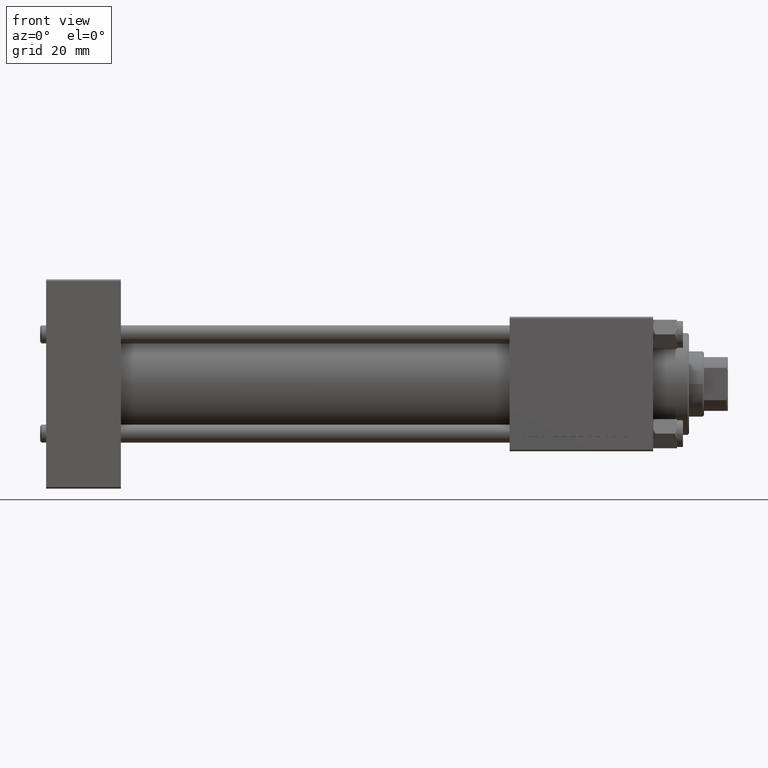
[diagram: clean part render]
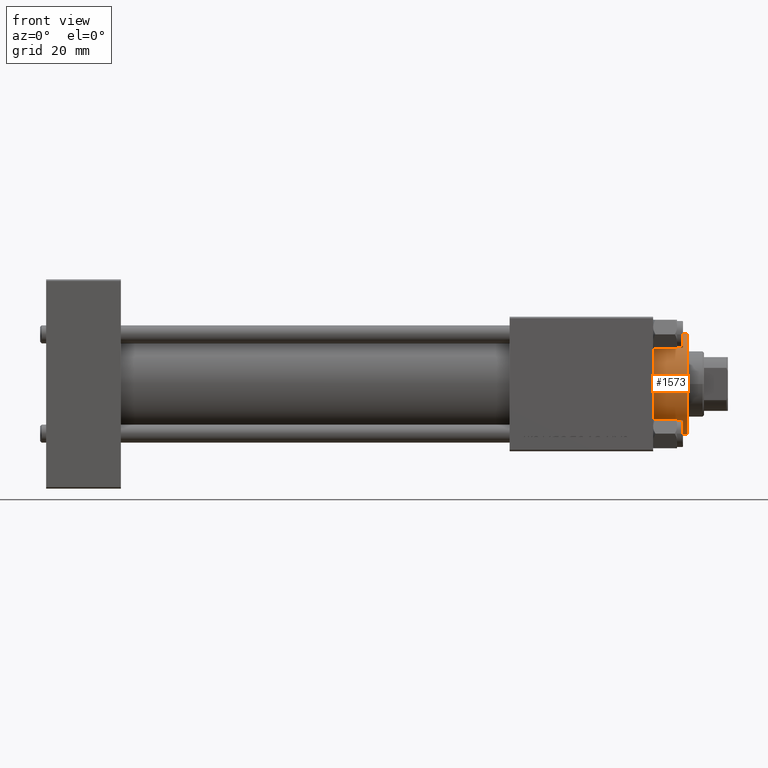
[diagram: same view with one face highlighted and labeled with its STEP entity id]
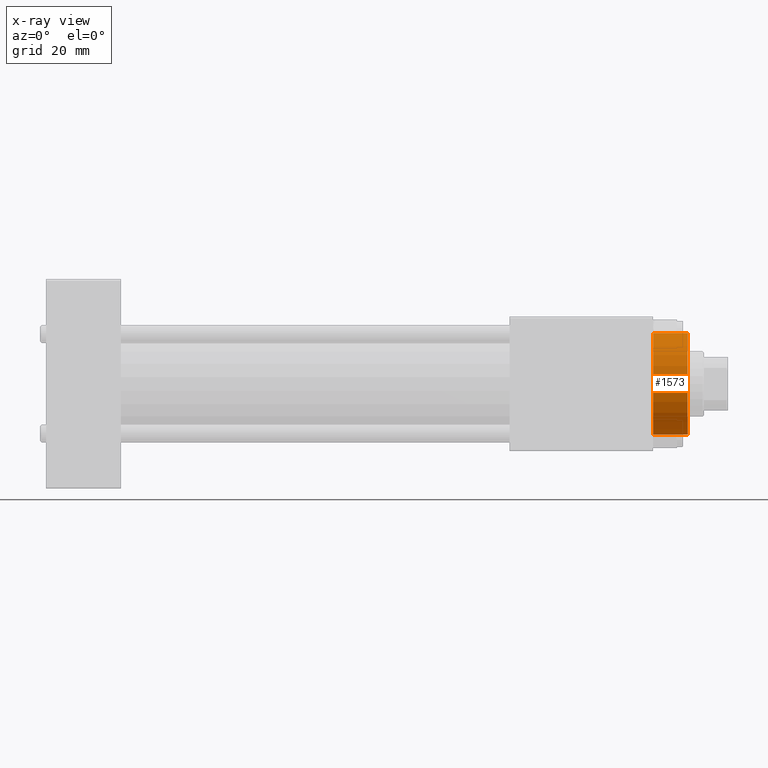
[diagram: x-ray of the same camera — body ghosted, the highlighted face saturated]
A machine part, front view. The second image highlights one B-rep face of the part: STEP entity #1573.
The next image is the same camera in x-ray: the body ghosted, the highlighted face saturated — about 0% of this face is hidden behind the body in this view.
In plain terms, the highlighted cylindrical surface (partial cylindrical patch) has radius 17 mm, axis along (-1, -0, 0).
Its self-contained STEP definition (entity closure, byte-faithful):
#1573 = ADVANCED_FACE ( 'NONE', ( #32688 ), #5135, .T. ) ;
#2078 = CARTESIAN_POINT ( 'NONE',  ( 0.000000000000000000, 0.000000000000000000, 40.70000000000000284 ) ) ;
#3662 = ORIENTED_EDGE ( 'NONE', *, *, #4940, .T. ) ;
#4911 = AXIS2_PLACEMENT_3D ( 'NONE', #29452, #9997, #17577 ) ;
#4940 = EDGE_CURVE ( 'NONE', #19233, #23901, #35608, .T. ) ;
#5013 = CARTESIAN_POINT ( 'NONE',  ( -17.00000000000000000, 0.000000000000000000, 40.70000000000000284 ) ) ;
#5135 = CYLINDRICAL_SURFACE ( 'NONE', #6431, 17.00000000000000000 ) ;
#6019 = EDGE_CURVE ( 'NONE', #44998, #26185, #9793, .T. ) ;
#6431 = AXIS2_PLACEMENT_3D ( 'NONE', #2078, #12731, #8938 ) ;
#7301 = CARTESIAN_POINT ( 'NONE',  ( -17.00000000000000000, 0.000000000000000000, 28.69999999999999929 ) ) ;
#7530 = EDGE_CURVE ( 'NONE', #23901, #44998, #29012, .T. ) ;
#7747 = DIRECTION ( 'NONE',  ( -0.000000000000000000, -0.000000000000000000, -1.000000000000000000 ) ) ;
#8938 = DIRECTION ( 'NONE',  ( -1.000000000000000000, 0.000000000000000000, 0.000000000000000000 ) ) ;
#9689 = DIRECTION ( 'NONE',  ( 1.000000000000000000, 0.000000000000000000, 0.000000000000000000 ) ) ;
#9793 = CIRCLE ( 'NONE', #25124, 17.00000000000000000 ) ;
#9997 = DIRECTION ( 'NONE',  ( 0.000000000000000000, 0.000000000000000000, -1.000000000000000000 ) ) ;
#11863 = CARTESIAN_POINT ( 'NONE',  ( 17.00000000000000000, 2.081899558550500280E-15, 40.19999999999999574 ) ) ;
#12731 = DIRECTION ( 'NONE',  ( -0.000000000000000000, -0.000000000000000000, -1.000000000000000000 ) ) ;
#14487 = CARTESIAN_POINT ( 'NONE',  ( 0.000000000000000000, 0.000000000000000000, 28.69999999999999929 ) ) ;
#17577 = DIRECTION ( 'NONE',  ( 1.000000000000000000, 0.000000000000000000, 0.000000000000000000 ) ) ;
#18888 = LINE ( 'NONE', #34307, #46883 ) ;
#19233 = VERTEX_POINT ( 'NONE', #11863 ) ;
#22053 = ORIENTED_EDGE ( 'NONE', *, *, #48649, .F. ) ;
#23853 = ORIENTED_EDGE ( 'NONE', *, *, #6019, .T. ) ;
#23901 = VERTEX_POINT ( 'NONE', #34684 ) ;
#25124 = AXIS2_PLACEMENT_3D ( 'NONE', #14487, #33454, #9689 ) ;
#26185 = VERTEX_POINT ( 'NONE', #38888 ) ;
#29012 = LINE ( 'NONE', #5013, #38943 ) ;
#29452 = CARTESIAN_POINT ( 'NONE',  ( 0.000000000000000000, 0.000000000000000000, 40.19999999999999574 ) ) ;
#32688 = FACE_OUTER_BOUND ( 'NONE', #38087, .T. ) ;
#33454 = DIRECTION ( 'NONE',  ( 0.000000000000000000, 0.000000000000000000, 1.000000000000000000 ) ) ;
#34307 = CARTESIAN_POINT ( 'NONE',  ( 17.00000000000000000, 2.081899558550500280E-15, 40.70000000000000284 ) ) ;
#34684 = CARTESIAN_POINT ( 'NONE',  ( -17.00000000000000000, 0.000000000000000000, 40.19999999999999574 ) ) ;
#35608 = CIRCLE ( 'NONE', #4911, 17.00000000000000000 ) ;
#38087 = EDGE_LOOP ( 'NONE', ( #22053, #3662, #39670, #23853 ) ) ;
#38888 = CARTESIAN_POINT ( 'NONE',  ( 17.00000000000000000, 2.081899558550500280E-15, 28.69999999999999929 ) ) ;
#38943 = VECTOR ( 'NONE', #47704, 1000.000000000000000 ) ;
#39670 = ORIENTED_EDGE ( 'NONE', *, *, #7530, .T. ) ;
#44998 = VERTEX_POINT ( 'NONE', #7301 ) ;
#46883 = VECTOR ( 'NONE', #7747, 1000.000000000000000 ) ;
#47704 = DIRECTION ( 'NONE',  ( -0.000000000000000000, -0.000000000000000000, -1.000000000000000000 ) ) ;
#48649 = EDGE_CURVE ( 'NONE', #19233, #26185, #18888, .T. ) ;